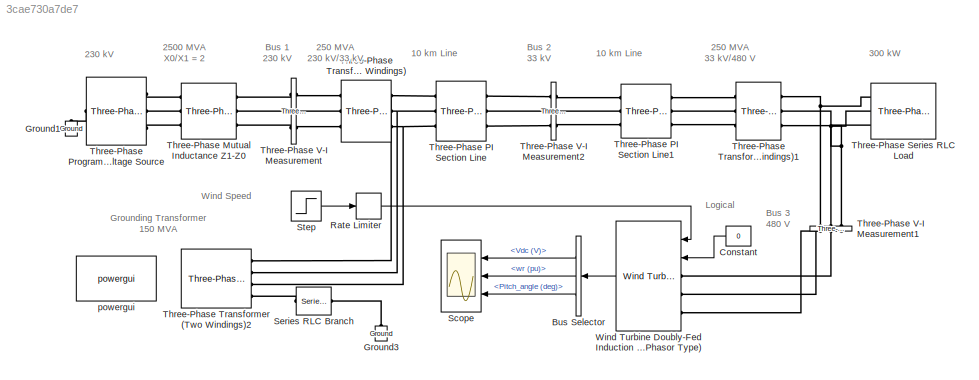
MODEL slx_3cae730a7de7
KIND model
CONFIG AbsTol = auto
CONFIG EnableMultiTasking = off
CONFIG FixedStep = auto
CONFIG MaxStep = auto
CONFIG MinStep = auto
CONFIG RelTol = 1e-3
CONFIG SampleTimeConstraint = Unconstrained
CONFIG Solver = VariableStepAuto
CONFIG SolverName = VariableStepAuto
CONFIG StartTime = 0.0
CONFIG StopTime = 10
BLOCK [BusSelector] Bus Selector
  OutputSignals = Vdc (V),wr (pu),Pitch_angle (deg)
  Ports = [1, 3]
BLOCK [Constant] Constant
  Value = 0
BLOCK [Reference] Ground1  REF=powerlib/Elements/Ground
  AttributesFormatString = \n
  NameLocation = right
  Ports = [0, 0, 0, 0, 0, 1]
  SourceBlock = powerlib/Elements/Ground
  SourceProductBaseCode = PS
  SourceType = Ground
BLOCK [Reference] Ground3  REF=powerlib/Elements/Ground
  AttributesFormatString = \n
  NameLocation = right
  Ports = [0, 0, 0, 0, 0, 1]
  SourceBlock = powerlib/Elements/Ground
  SourceProductBaseCode = MT,PS
  SourceType = Ground
BLOCK [RateLimiter] Rate Limiter
BLOCK [Scope] Scope
  Floating = off
  NumInputPorts = 3
  Ports = [3]
  ScopeSpecificationString = Simulink.scopes.TimeScopeBlockCfg('CurrentConfiguration', extmgr.ConfigurationSet(extmgr.Configuration('Core','General UI',true,'FigureColor',[1 1 1]),extmgr.Configuration('Core','Source UI',true),extmgr.Configuration('Sources','WiredSimulink',true,'DataLoggingVariableName','ScopeData1'),extmgr.Configuration('Visuals','Time Domain',true,'SerializedDisplays',{struct('MinYLimReal','286.23922','MaxYL...<+3177ch>
BLOCK [Reference] Series RLC Branch  REF=powerlib/Elements/Series RLC Branch
  Ports = [0, 0, 0, 0, 0, 1, 1]
  SourceBlock = powerlib/Elements/Series RLC Branch
  SourceProductBaseCode = PS
  SourceType = Series RLC Branch
BLOCK [Step] Step
  After = 14
  Before = 8
  SampleTime = 0
  Time = 5
BLOCK [Reference] Three-Phase Mutual Inductance Z1-Z0  REF=powerlib/Elements/Three-Phase
Mutual Inductance
Z1-Z0
  AttributesFormatString = \n
  Ports = [0, 0, 0, 0, 0, 3, 3]
  SourceBlock = powerlib/Elements/Three-Phase\nMutual Inductance\nZ1-Z0
  SourceProductBaseCode = PS
  SourceType = Three-Phase Mutual Inductance Z1-Z0
BLOCK [Reference] Three-Phase PI Section Line  REF=powerlib/Elements/Three-Phase
PI Section Line
  AttributesFormatString = \n
  Ports = [0, 0, 0, 0, 0, 3, 3]
  SourceBlock = powerlib/Elements/Three-Phase\nPI Section Line
  SourceProductBaseCode = PS
  SourceType = Three-Phase PI Section Line
BLOCK [Reference] Three-Phase PI Section Line1  REF=powerlib/Elements/Three-Phase
PI Section Line
  AttributesFormatString = \n
  Ports = [0, 0, 0, 0, 0, 3, 3]
  SourceBlock = powerlib/Elements/Three-Phase\nPI Section Line
  SourceProductBaseCode = PS
  SourceType = Three-Phase PI Section Line
BLOCK [Reference] Three-Phase Programmable Voltage Source  REF=powerlib/Electrical
Sources/Three-Phase
Programmable
Voltage Source
  Ports = [0, 0, 0, 0, 0, 1, 3]
  SourceBlock = powerlib/Electrical\nSources/Three-Phase\nProgrammable\nVoltage Source
  SourceProductBaseCode = PS
  SourceType = Three-Phase Programmable Voltage Source
BLOCK [Reference] Three-Phase Series RLC Load  REF=powerlib/Elements/Three-Phase
Series RLC Load
  AttributesFormatString = \n
  Ports = [0, 0, 0, 0, 0, 3]
  SourceBlock = powerlib/Elements/Three-Phase\nSeries RLC Load
  SourceProductBaseCode = PS
  SourceType = Three-Phase Series RLC Load
BLOCK [Reference] Three-Phase Transformer (Two Windings)  REF=powerlib/Elements/Three-Phase
Transformer
(Two Windings)
  Ports = [0, 0, 0, 0, 0, 3, 3]
  SourceBlock = powerlib/Elements/Three-Phase\nTransformer\n(Two Windings)
  SourceProductBaseCode = PS
  SourceType = Three-Phase Transformer (Two Windings)
BLOCK [Reference] Three-Phase Transformer (Two Windings)1  REF=powerlib/Elements/Three-Phase
Transformer
(Two Windings)
  Ports = [0, 0, 0, 0, 0, 3, 3]
  SourceBlock = powerlib/Elements/Three-Phase\nTransformer\n(Two Windings)
  SourceProductBaseCode = PS
  SourceType = Three-Phase Transformer (Two Windings)
BLOCK [Reference] Three-Phase Transformer (Two Windings)2  REF=powerlib/Elements/Three-Phase
Transformer
(Two Windings)
  Ports = [0, 0, 0, 0, 0, 4, 3]
  SourceBlock = powerlib/Elements/Three-Phase\nTransformer\n(Two Windings)
  SourceProductBaseCode = PS
  SourceType = Three-Phase Transformer (Two Windings)
BLOCK [Reference] Three-Phase V-I Measurement  REF=powerlib/Measurements/Three-Phase
V-I Measurement
  Ports = [0, 0, 0, 0, 0, 3, 3]
  SourceBlock = powerlib/Measurements/Three-Phase\nV-I Measurement
  SourceProductBaseCode = PS
  SourceType = Three-Phase VI Measurement
BLOCK [Reference] Three-Phase V-I Measurement1  REF=powerlib/Measurements/Three-Phase
V-I Measurement
  NameLocation = right
  Ports = [0, 0, 0, 0, 0, 3, 3]
  SourceBlock = powerlib/Measurements/Three-Phase\nV-I Measurement
  SourceProductBaseCode = PS
  SourceType = Three-Phase VI Measurement
BLOCK [Reference] Three-Phase V-I Measurement2  REF=powerlib/Measurements/Three-Phase
V-I Measurement
  Ports = [0, 0, 0, 0, 0, 3, 3]
  SourceBlock = powerlib/Measurements/Three-Phase\nV-I Measurement
  SourceProductBaseCode = PS
  SourceType = Three-Phase VI Measurement
BLOCK [Reference] Wind Turbine Doubly-Fed Induction Generator (Phasor Type)  REF=re_lib/Wind Generation/Wind Turbine
Doubly-Fed Induction Generator
(Phasor Type)
  Ports = [2, 1, 0, 0, 0, 3]
  SourceBlock = re_lib/Wind Generation/Wind Turbine\nDoubly-Fed Induction Generator\n(Phasor Type)
  SourceProductBaseCode = PS
  SourceType = Wind Turbine Doubly-Fed Induction Generator (Phasor Type)
BLOCK [Reference] powergui  REF=powerlib/powergui
  Ports = []
  Priority = 2
  SourceBlock = powerlib/powergui
  SourceProductBaseCode = PS
  SourceType = PSB option menu block
ANNOTATION (root): 250 MVA 230 kV/33 kV
ANNOTATION (root): 250 MVA 33 kV/480 V
ANNOTATION (root): Bus 1 230 kV
ANNOTATION (root): Bus 2 33 kV
ANNOTATION (root): Bus 3 480 V
ANNOTATION (root): Grounding Transformer 150 MVA
ANNOTATION (root): 10 km Line
ANNOTATION (root): 230 kV
ANNOTATION (root): 300 kW
ANNOTATION (root): Logical
ANNOTATION (root): Wind Speed
ANNOTATION (root): 2500 MVA X0/X1 = 2
LINE Bus Selector:1 -> Scope:1
LINE Bus Selector:2 -> Scope:2
LINE Bus Selector:3 -> Scope:3
LINE Constant:1 -> Wind Turbine Doubly-Fed Induction Generator (Phasor Type):2
LINE Rate Limiter:1 -> Wind Turbine Doubly-Fed Induction Generator (Phasor Type):1
LINE Step:1 -> Rate Limiter:1
LINE Wind Turbine Doubly-Fed Induction Generator (Phasor Type):1 -> Bus Selector:1
PLINE Ground1:LConn1 -- Three-Phase Programmable Voltage Source:LConn1
PLINE Ground3:LConn1 -- Series RLC Branch:RConn1
PLINE Series RLC Branch:LConn1 -- Three-Phase Transformer (Two Windings)2:LConn4
PLINE Three-Phase Mutual Inductance Z1-Z0:LConn1 -- Three-Phase Programmable Voltage Source:RConn1
PLINE Three-Phase Mutual Inductance Z1-Z0:LConn2 -- Three-Phase Programmable Voltage Source:RConn2
PLINE Three-Phase Mutual Inductance Z1-Z0:LConn3 -- Three-Phase Programmable Voltage Source:RConn3
PLINE Three-Phase Mutual Inductance Z1-Z0:RConn1 -- Three-Phase V-I Measurement:LConn1
PLINE Three-Phase Mutual Inductance Z1-Z0:RConn2 -- Three-Phase V-I Measurement:LConn2
PLINE Three-Phase Mutual Inductance Z1-Z0:RConn3 -- Three-Phase V-I Measurement:LConn3
PLINE Three-Phase PI Section Line1:LConn1 -- Three-Phase V-I Measurement2:RConn1
PLINE Three-Phase PI Section Line1:LConn2 -- Three-Phase V-I Measurement2:RConn2
PLINE Three-Phase PI Section Line1:LConn3 -- Three-Phase V-I Measurement2:RConn3
PLINE Three-Phase PI Section Line1:RConn1 -- Three-Phase Transformer (Two Windings)1:LConn1
PLINE Three-Phase PI Section Line1:RConn2 -- Three-Phase Transformer (Two Windings)1:LConn2
PLINE Three-Phase PI Section Line1:RConn3 -- Three-Phase Transformer (Two Windings)1:LConn3
PNET net1: Three-Phase PI Section Line:LConn1 -- Three-Phase Transformer (Two Windings)2:LConn1 -- Three-Phase Transformer (Two Windings):RConn1
PNET net2: Three-Phase PI Section Line:LConn2 -- Three-Phase Transformer (Two Windings)2:LConn2 -- Three-Phase Transformer (Two Windings):RConn2
PNET net3: Three-Phase PI Section Line:LConn3 -- Three-Phase Transformer (Two Windings)2:LConn3 -- Three-Phase Transformer (Two Windings):RConn3
PLINE Three-Phase PI Section Line:RConn1 -- Three-Phase V-I Measurement2:LConn1
PLINE Three-Phase PI Section Line:RConn2 -- Three-Phase V-I Measurement2:LConn2
PLINE Three-Phase PI Section Line:RConn3 -- Three-Phase V-I Measurement2:LConn3
PNET net4: Three-Phase Series RLC Load:LConn1 -- Three-Phase Transformer (Two Windings)1:RConn1 -- Three-Phase V-I Measurement1:LConn1
PNET net5: Three-Phase Series RLC Load:LConn2 -- Three-Phase Transformer (Two Windings)1:RConn2 -- Three-Phase V-I Measurement1:LConn2
PNET net6: Three-Phase Series RLC Load:LConn3 -- Three-Phase Transformer (Two Windings)1:RConn3 -- Three-Phase V-I Measurement1:LConn3
PLINE Three-Phase Transformer (Two Windings):LConn1 -- Three-Phase V-I Measurement:RConn1
PLINE Three-Phase Transformer (Two Windings):LConn2 -- Three-Phase V-I Measurement:RConn2
PLINE Three-Phase Transformer (Two Windings):LConn3 -- Three-Phase V-I Measurement:RConn3
PLINE Three-Phase V-I Measurement1:RConn1 -- Wind Turbine Doubly-Fed Induction Generator (Phasor Type):LConn1
PLINE Three-Phase V-I Measurement1:RConn2 -- Wind Turbine Doubly-Fed Induction Generator (Phasor Type):LConn2
PLINE Three-Phase V-I Measurement1:RConn3 -- Wind Turbine Doubly-Fed Induction Generator (Phasor Type):LConn3
note: PNET lines group multi-terminal physical nets as a canonical sorted terminal list (undirected conserving connections); 2-terminal nets keep the pairwise PLINE form
